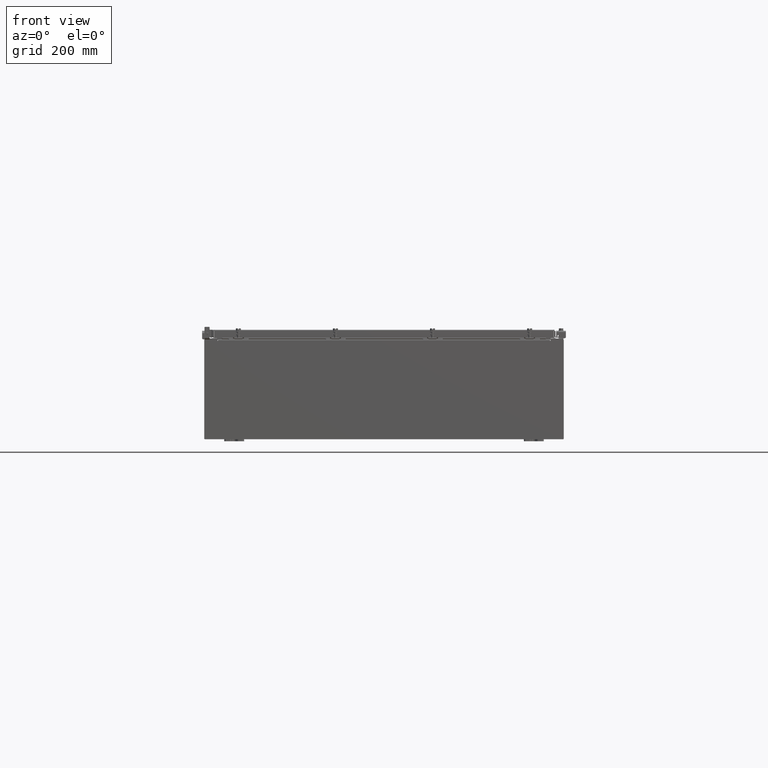
[diagram: clean part render]
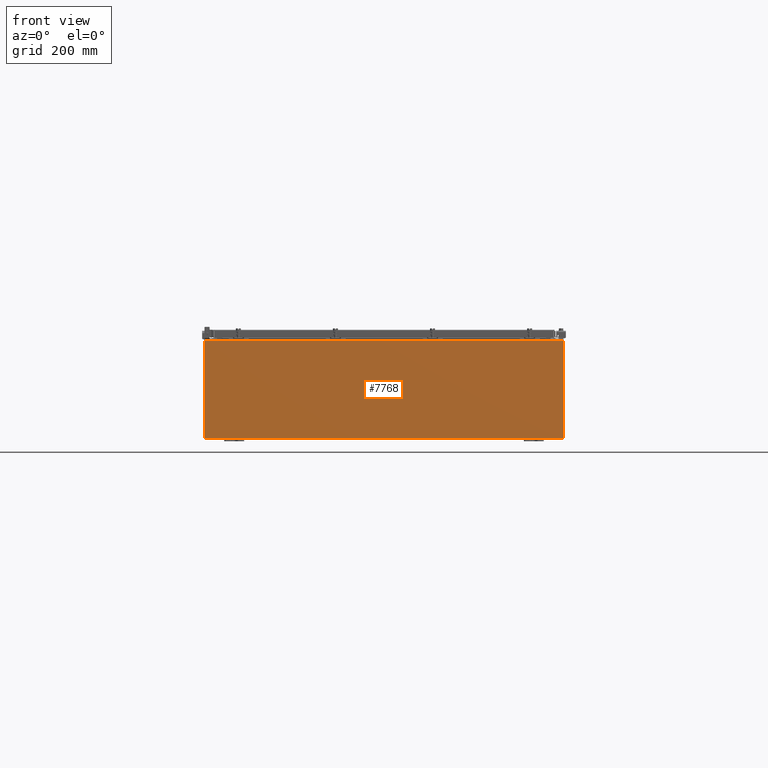
[diagram: same view with one face highlighted and labeled with its STEP entity id]
A machine part, front view. The second image highlights one B-rep face of the part: STEP entity #7768.
In plain terms, the highlighted planar face has unit normal (-0, 1, -0).
Its self-contained STEP definition (entity closure, byte-faithful):
#33 = LINE ( 'NONE', #25561, #21313 ) ;
#116 = PLANE ( 'NONE',  #4007 ) ;
#176 = DIRECTION ( 'NONE',  ( 1.000000000000000000, 0.0000000000000000000, 0.0000000000000000000 ) ) ;
#261 = CARTESIAN_POINT ( 'NONE',  ( 0.0000000000000000000, 0.0000000000000000000, 0.0000000000000000000 ) ) ;
#267 = LINE ( 'NONE', #10273, #20882 ) ;
#500 = ORIENTED_EDGE ( 'NONE', *, *, #11070, .F. ) ;
#1008 = DIRECTION ( 'NONE',  ( -0.0000000000000000000, -0.0000000000000000000, 1.000000000000000000 ) ) ;
#1987 = EDGE_CURVE ( 'NONE', #12916, #19278, #267, .T. ) ;
#3048 = EDGE_CURVE ( 'NONE', #27079, #18413, #7356, .T. ) ;
#3226 = CARTESIAN_POINT ( 'NONE',  ( 16.67455000000000000, 0.0000000000000000000, 4.874950000000000100 ) ) ;
#3677 = CARTESIAN_POINT ( 'NONE',  ( -16.67455000000000000, 0.0000000000000000000, 4.925300000000000000 ) ) ;
#4007 = AXIS2_PLACEMENT_3D ( 'NONE', #261, #27162, #25558 ) ;
#4183 = CARTESIAN_POINT ( 'NONE',  ( -16.65587500000000200, 0.0000000000000000000, 4.874950000000000100 ) ) ;
#4896 = ORIENTED_EDGE ( 'NONE', *, *, #1987, .T. ) ;
#5047 = ORIENTED_EDGE ( 'NONE', *, *, #21028, .F. ) ;
#5173 = LINE ( 'NONE', #21588, #10193 ) ;
#5174 = EDGE_CURVE ( 'NONE', #25743, #18413, #24269, .T. ) ;
#5575 = CARTESIAN_POINT ( 'NONE',  ( 16.63720000000000400, 0.0000000000000000000, 4.912300000000000100 ) ) ;
#5681 = CARTESIAN_POINT ( 'NONE',  ( 16.65587500000000200, 0.0000000000000000000, 4.874950000000000100 ) ) ;
#5697 = EDGE_CURVE ( 'NONE', #19278, #19372, #17208, .T. ) ;
#5941 = VERTEX_POINT ( 'NONE', #3226 ) ;
#6169 = CARTESIAN_POINT ( 'NONE',  ( -16.67455000000000000, 0.0000000000000000000, 4.874950000000000100 ) ) ;
#6296 = DIRECTION ( 'NONE',  ( 0.0000000000000000000, 0.0000000000000000000, -1.000000000000000000 ) ) ;
#6460 = DIRECTION ( 'NONE',  ( 0.0000000000000000000, 0.0000000000000000000, -1.000000000000000000 ) ) ;
#7022 = AXIS2_PLACEMENT_3D ( 'NONE', #4183, #19054, #6296 ) ;
#7241 = VECTOR ( 'NONE', #19342, 39.37007874015748100 ) ;
#7356 = LINE ( 'NONE', #9178, #23037 ) ;
#7436 = EDGE_LOOP ( 'NONE', ( #26329, #20688, #24651, #25643, #500, #23746, #5047, #23350, #4896, #8643, #9893, #24793 ) ) ;
#7768 = ADVANCED_FACE ( 'NONE', ( #25808 ), #116, .F. ) ;
#7819 = DIRECTION ( 'NONE',  ( 0.0000000000000000000, 0.0000000000000000000, -1.000000000000000000 ) ) ;
#8230 = CARTESIAN_POINT ( 'NONE',  ( 16.63720000000000400, 0.0000000000000000000, 4.874950000000000100 ) ) ;
#8503 = DIRECTION ( 'NONE',  ( -8.681145560800009800E-014, 0.0000000000000000000, -1.000000000000000000 ) ) ;
#8643 = ORIENTED_EDGE ( 'NONE', *, *, #5697, .T. ) ;
#9178 = CARTESIAN_POINT ( 'NONE',  ( -16.67455000000000000, -0.0000000000000000000, 0.0000000000000000000 ) ) ;
#9201 = DIRECTION ( 'NONE',  ( 0.0000000000000000000, 0.0000000000000000000, 1.000000000000000000 ) ) ;
#9436 = CARTESIAN_POINT ( 'NONE',  ( -16.63720000000000400, -0.0000000000000000000, 4.874950000000000100 ) ) ;
#9575 = CARTESIAN_POINT ( 'NONE',  ( 16.63720000000000400, 0.0000000000000000000, 0.0000000000000000000 ) ) ;
#9893 = ORIENTED_EDGE ( 'NONE', *, *, #17632, .T. ) ;
#10050 = LINE ( 'NONE', #21244, #15661 ) ;
#10193 = VECTOR ( 'NONE', #176, 39.37007874015748100 ) ;
#10273 = CARTESIAN_POINT ( 'NONE',  ( 17.92530000000000000, 0.0000000000000000000, 4.925300000000000000 ) ) ;
#11070 = EDGE_CURVE ( 'NONE', #11393, #11868, #18003, .T. ) ;
#11393 = VERTEX_POINT ( 'NONE', #8230 ) ;
#11577 = EDGE_CURVE ( 'NONE', #22452, #27463, #33, .T. ) ;
#11868 = VERTEX_POINT ( 'NONE', #5575 ) ;
#12341 = VECTOR ( 'NONE', #26533, 39.37007874015748100 ) ;
#12846 = VECTOR ( 'NONE', #17446, 39.37007874015748100 ) ;
#12916 = VERTEX_POINT ( 'NONE', #17909 ) ;
#13114 = CARTESIAN_POINT ( 'NONE',  ( 16.67455000000000700, 0.0000000000000000000, 4.925300000000000000 ) ) ;
#14590 = DIRECTION ( 'NONE',  ( 0.0000000000000000000, 0.0000000000000000000, -1.000000000000000000 ) ) ;
#15147 = VECTOR ( 'NONE', #1008, 39.37007874015748100 ) ;
#15179 = CARTESIAN_POINT ( 'NONE',  ( -16.63720000000000400, -7.171100983368691200E-016, 4.912300000000000100 ) ) ;
#15288 = EDGE_CURVE ( 'NONE', #22452, #11868, #20514, .T. ) ;
#15661 = VECTOR ( 'NONE', #8503, 39.37007874015748100 ) ;
#15974 = EDGE_CURVE ( 'NONE', #25737, #12916, #5173, .T. ) ;
#16528 = VECTOR ( 'NONE', #24223, 39.37007874015748100 ) ;
#16950 = CARTESIAN_POINT ( 'NONE',  ( 17.92530000000000000, 0.0000000000000000000, -4.925300000000000000 ) ) ;
#17208 = LINE ( 'NONE', #24112, #16528 ) ;
#17263 = EDGE_CURVE ( 'NONE', #27463, #27079, #18759, .T. ) ;
#17446 = DIRECTION ( 'NONE',  ( 1.000000000000000000, 0.0000000000000000000, 0.0000000000000000000 ) ) ;
#17632 = EDGE_CURVE ( 'NONE', #19372, #25743, #20834, .T. ) ;
#17909 = CARTESIAN_POINT ( 'NONE',  ( 17.92530000000000000, 0.0000000000000000000, 4.925300000000000000 ) ) ;
#18003 = LINE ( 'NONE', #9575, #12341 ) ;
#18413 = VERTEX_POINT ( 'NONE', #3677 ) ;
#18759 = CIRCLE ( 'NONE', #7022, 0.01867499999999949400 ) ;
#19054 = DIRECTION ( 'NONE',  ( -0.0000000000000000000, 1.000000000000000000, -0.0000000000000000000 ) ) ;
#19278 = VERTEX_POINT ( 'NONE', #16950 ) ;
#19342 = DIRECTION ( 'NONE',  ( 1.000000000000000000, 0.0000000000000000000, 0.0000000000000000000 ) ) ;
#19372 = VERTEX_POINT ( 'NONE', #25838 ) ;
#19515 = CIRCLE ( 'NONE', #23281, 0.01867499999999949400 ) ;
#20514 = LINE ( 'NONE', #15179, #12846 ) ;
#20570 = DIRECTION ( 'NONE',  ( -0.0000000000000000000, 1.000000000000000000, -0.0000000000000000000 ) ) ;
#20688 = ORIENTED_EDGE ( 'NONE', *, *, #17263, .F. ) ;
#20834 = LINE ( 'NONE', #26532, #15147 ) ;
#20882 = VECTOR ( 'NONE', #14590, 39.37007874015748100 ) ;
#21028 = EDGE_CURVE ( 'NONE', #25737, #5941, #10050, .T. ) ;
#21244 = CARTESIAN_POINT ( 'NONE',  ( 16.67454999999957700, -0.0000000000000000000, -1.447541957108341500E-012 ) ) ;
#21313 = VECTOR ( 'NONE', #6460, 39.37007874015748100 ) ;
#21588 = CARTESIAN_POINT ( 'NONE',  ( -17.92530000000000000, 0.0000000000000000000, 4.925300000000000000 ) ) ;
#21718 = CARTESIAN_POINT ( 'NONE',  ( -16.63720000000000400, -7.171100983368691200E-016, 4.912300000000000100 ) ) ;
#22452 = VERTEX_POINT ( 'NONE', #21718 ) ;
#23037 = VECTOR ( 'NONE', #9201, 39.37007874015748100 ) ;
#23281 = AXIS2_PLACEMENT_3D ( 'NONE', #5681, #20570, #7819 ) ;
#23350 = ORIENTED_EDGE ( 'NONE', *, *, #15974, .T. ) ;
#23746 = ORIENTED_EDGE ( 'NONE', *, *, #25328, .F. ) ;
#23837 = CARTESIAN_POINT ( 'NONE',  ( -17.92530000000000000, 0.0000000000000000000, 4.925300000000000000 ) ) ;
#24112 = CARTESIAN_POINT ( 'NONE',  ( -17.92530000000000000, 0.0000000000000000000, -4.925300000000000000 ) ) ;
#24223 = DIRECTION ( 'NONE',  ( -1.000000000000000000, -0.0000000000000000000, -0.0000000000000000000 ) ) ;
#24269 = LINE ( 'NONE', #25337, #7241 ) ;
#24651 = ORIENTED_EDGE ( 'NONE', *, *, #11577, .F. ) ;
#24793 = ORIENTED_EDGE ( 'NONE', *, *, #5174, .T. ) ;
#25328 = EDGE_CURVE ( 'NONE', #5941, #11393, #19515, .T. ) ;
#25337 = CARTESIAN_POINT ( 'NONE',  ( -17.92530000000000000, 0.0000000000000000000, 4.925300000000000000 ) ) ;
#25558 = DIRECTION ( 'NONE',  ( 0.0000000000000000000, -0.0000000000000000000, -1.000000000000000000 ) ) ;
#25561 = CARTESIAN_POINT ( 'NONE',  ( -16.63720000000000400, -0.0000000000000000000, 0.0000000000000000000 ) ) ;
#25643 = ORIENTED_EDGE ( 'NONE', *, *, #15288, .T. ) ;
#25737 = VERTEX_POINT ( 'NONE', #13114 ) ;
#25743 = VERTEX_POINT ( 'NONE', #23837 ) ;
#25808 = FACE_OUTER_BOUND ( 'NONE', #7436, .T. ) ;
#25838 = CARTESIAN_POINT ( 'NONE',  ( -17.92530000000000000, 0.0000000000000000000, -4.925300000000000000 ) ) ;
#26329 = ORIENTED_EDGE ( 'NONE', *, *, #3048, .F. ) ;
#26532 = CARTESIAN_POINT ( 'NONE',  ( -17.92530000000000000, 0.0000000000000000000, 4.925300000000000000 ) ) ;
#26533 = DIRECTION ( 'NONE',  ( 0.0000000000000000000, 0.0000000000000000000, 1.000000000000000000 ) ) ;
#27079 = VERTEX_POINT ( 'NONE', #6169 ) ;
#27162 = DIRECTION ( 'NONE',  ( 0.0000000000000000000, -1.000000000000000000, 0.0000000000000000000 ) ) ;
#27463 = VERTEX_POINT ( 'NONE', #9436 ) ;